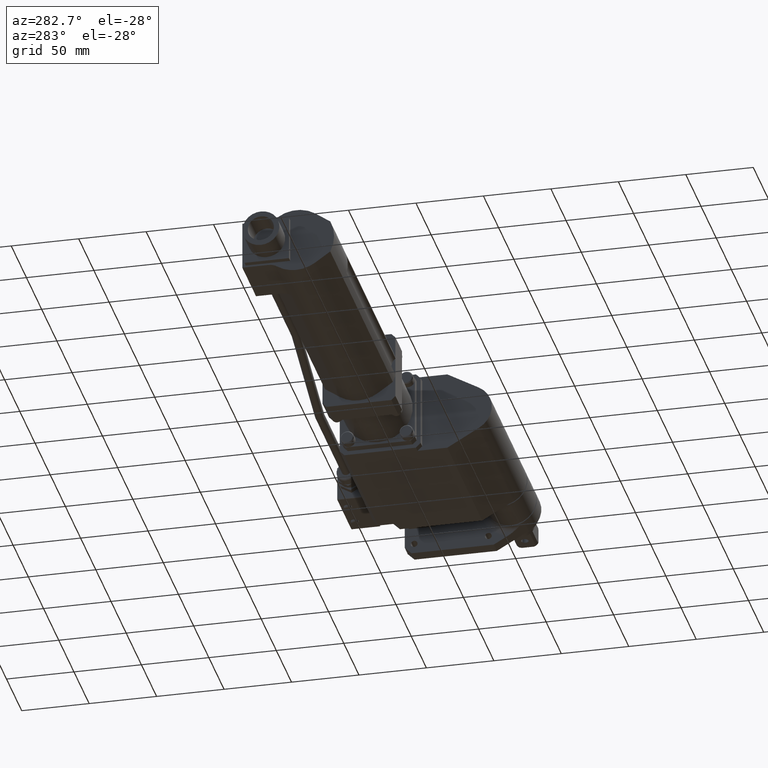
[diagram: clean part render]
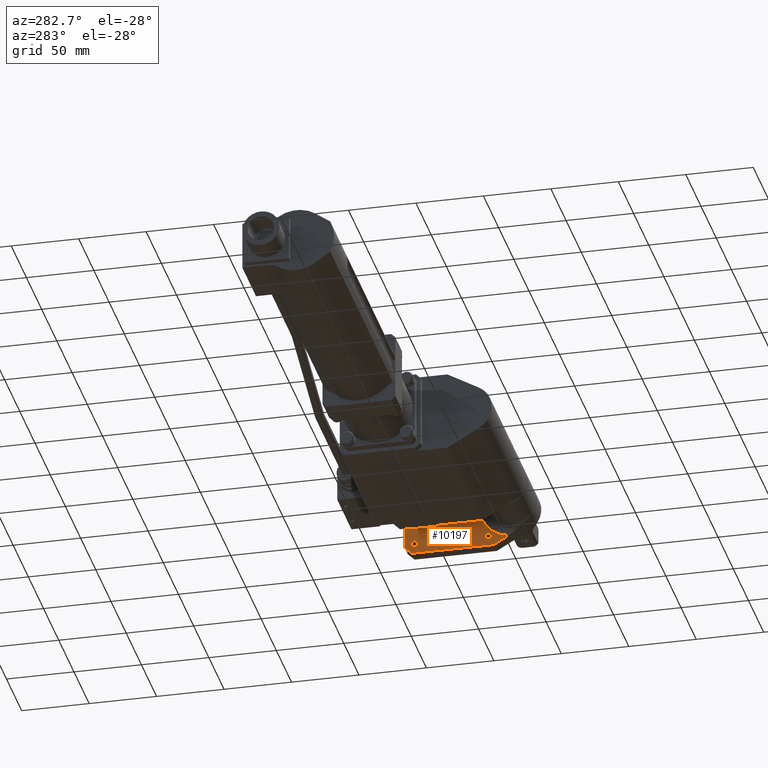
[diagram: same view with one face highlighted and labeled with its STEP entity id]
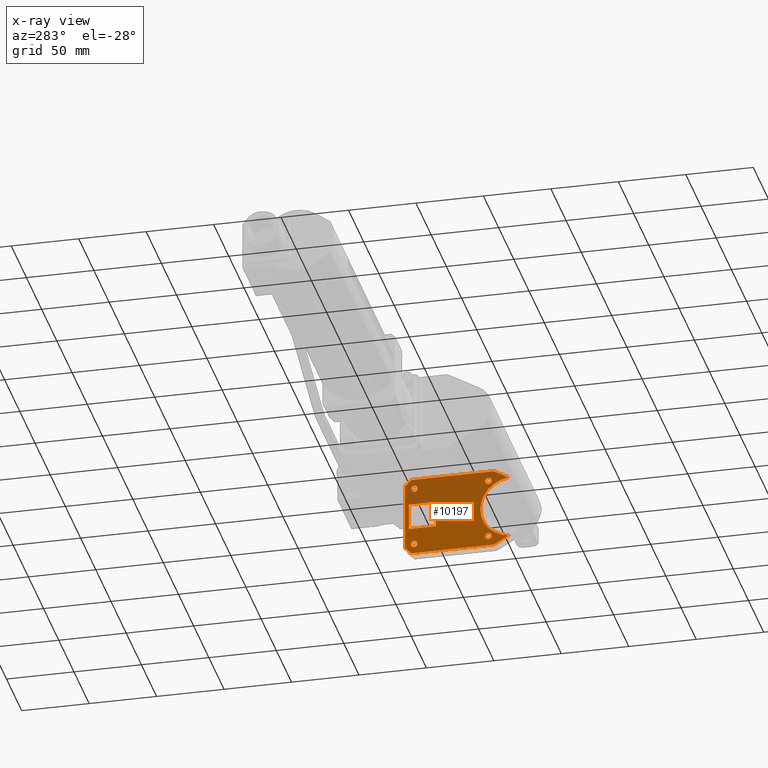
[diagram: x-ray of the same camera — body ghosted, the highlighted face saturated]
A machine part, auxiliary view. The second image highlights one B-rep face of the part: STEP entity #10197.
The next image is the same camera in x-ray: the body ghosted, the highlighted face saturated — about 57% of this face is hidden behind the body in this view.
In plain terms, the highlighted planar face has unit normal (-1, 0, 0).
Its self-contained STEP definition (entity closure, byte-faithful):
#27 = CARTESIAN_POINT ( 'NONE',  ( -10.00000000000000000, 18.00000000000000000, 22.50000000000000400 ) ) ;
#46 = VERTEX_POINT ( 'NONE', #8899 ) ;
#56 = CARTESIAN_POINT ( 'NONE',  ( -10.00000000000000000, 73.00000000000000000, -22.49999999999999600 ) ) ;
#89 = CARTESIAN_POINT ( 'NONE',  ( -10.00000000000000000, 18.00000000000000000, 25.00000000000000000 ) ) ;
#139 = ORIENTED_EDGE ( 'NONE', *, *, #10903, .T. ) ;
#174 = CARTESIAN_POINT ( 'NONE',  ( -10.00000000000000000, 57.00000000000000000, -10.00000000000000000 ) ) ;
#222 = CARTESIAN_POINT ( 'NONE',  ( -10.00000000000000000, 52.50000000000010700, -52.49999999999995700 ) ) ;
#401 = VERTEX_POINT ( 'NONE', #12188 ) ;
#528 = DIRECTION ( 'NONE',  ( 0.0000000000000000000, 0.0000000000000000000, -1.000000000000000000 ) ) ;
#542 = LINE ( 'NONE', #12589, #7253 ) ;
#556 = CARTESIAN_POINT ( 'NONE',  ( -10.00000000000000000, 18.00000000000000000, 20.00000000000000400 ) ) ;
#560 = ORIENTED_EDGE ( 'NONE', *, *, #10388, .T. ) ;
#573 = FACE_BOUND ( 'NONE', #9596, .T. ) ;
#778 = CARTESIAN_POINT ( 'NONE',  ( -10.00000000000000000, 77.00000000000000000, 10.00000000000000000 ) ) ;
#794 = CARTESIAN_POINT ( 'NONE',  ( -10.00000000000000000, 77.00000000000000000, -10.00000000000000000 ) ) ;
#843 = DIRECTION ( 'NONE',  ( -0.0000000000000000000, -0.0000000000000000000, -1.000000000000000000 ) ) ;
#852 = EDGE_CURVE ( 'NONE', #2678, #8728, #12736, .T. ) ;
#868 = VECTOR ( 'NONE', #10006, 1000.000000000000100 ) ;
#1046 = CIRCLE ( 'NONE', #3212, 2.500000000000002200 ) ;
#1218 = CARTESIAN_POINT ( 'NONE',  ( -10.00000000000000000, 13.96152422706587600, 29.99999999999999600 ) ) ;
#1244 = FACE_OUTER_BOUND ( 'NONE', #4252, .T. ) ;
#1254 = LINE ( 'NONE', #13313, #10713 ) ;
#1303 = VERTEX_POINT ( 'NONE', #9339 ) ;
#1388 = DIRECTION ( 'NONE',  ( -0.0000000000000000000, -0.8660254037844414800, 0.4999999999999950600 ) ) ;
#1559 = LINE ( 'NONE', #174, #6039 ) ;
#1611 = LINE ( 'NONE', #222, #10871 ) ;
#1652 = ORIENTED_EDGE ( 'NONE', *, *, #5324, .F. ) ;
#1687 = DIRECTION ( 'NONE',  ( 0.0000000000000000000, -8.881784197001252300E-016, 1.000000000000000000 ) ) ;
#1703 = CIRCLE ( 'NONE', #7758, 2.499999999999998700 ) ;
#1900 = DIRECTION ( 'NONE',  ( 1.000000000000000000, -0.0000000000000000000, -0.0000000000000000000 ) ) ;
#2096 = ORIENTED_EDGE ( 'NONE', *, *, #7385, .T. ) ;
#2212 = CARTESIAN_POINT ( 'NONE',  ( -10.00000000000000000, 77.00000000000000000, 10.00000000000000000 ) ) ;
#2374 = DIRECTION ( 'NONE',  ( -0.0000000000000000000, -0.0000000000000000000, -1.000000000000000000 ) ) ;
#2567 = DIRECTION ( 'NONE',  ( 0.0000000000000000000, 0.0000000000000000000, -1.000000000000000000 ) ) ;
#2646 = CARTESIAN_POINT ( 'NONE',  ( -10.00000000000000000, 73.00000000000000000, 25.00000000000001100 ) ) ;
#2660 = AXIS2_PLACEMENT_3D ( 'NONE', #5288, #3928, #2567 ) ;
#2678 = VERTEX_POINT ( 'NONE', #8005 ) ;
#2733 = CIRCLE ( 'NONE', #8334, 2.499999999999998700 ) ;
#2779 = CARTESIAN_POINT ( 'NONE',  ( -10.00000000000000000, 13.96152422706663100, -30.00000000000000400 ) ) ;
#2803 = CIRCLE ( 'NONE', #6865, 2.499999999999998700 ) ;
#2902 = VECTOR ( 'NONE', #3027, 1000.000000000000000 ) ;
#2926 = ORIENTED_EDGE ( 'NONE', *, *, #4624, .T. ) ;
#3027 = DIRECTION ( 'NONE',  ( -0.0000000000000000000, -0.0000000000000000000, -1.000000000000000000 ) ) ;
#3063 = DIRECTION ( 'NONE',  ( 1.000000000000000000, -0.0000000000000000000, -0.0000000000000000000 ) ) ;
#3154 = VERTEX_POINT ( 'NONE', #3678 ) ;
#3212 = AXIS2_PLACEMENT_3D ( 'NONE', #6663, #5261, #3900 ) ;
#3271 = CARTESIAN_POINT ( 'NONE',  ( -10.00000000000000000, 18.00000000000000000, -22.49999999999999600 ) ) ;
#3369 = AXIS2_PLACEMENT_3D ( 'NONE', #56, #12127, #10742 ) ;
#3425 = EDGE_CURVE ( 'NONE', #9015, #9707, #5767, .T. ) ;
#3597 = EDGE_CURVE ( 'NONE', #5938, #8110, #1703, .T. ) ;
#3604 = LINE ( 'NONE', #2212, #3951 ) ;
#3615 = ORIENTED_EDGE ( 'NONE', *, *, #5546, .T. ) ;
#3678 = CARTESIAN_POINT ( 'NONE',  ( -10.00000000000000000, 80.00000000000001400, 24.99999999999994300 ) ) ;
#3718 = CARTESIAN_POINT ( 'NONE',  ( -10.00000000000000000, 80.00000000000000000, -24.99999999999998600 ) ) ;
#3756 = CARTESIAN_POINT ( 'NONE',  ( -10.00000000000000000, 80.00000000000000000, -30.00000000000000000 ) ) ;
#3897 = EDGE_LOOP ( 'NONE', ( #4940, #4131 ) ) ;
#3900 = DIRECTION ( 'NONE',  ( 0.0000000000000000000, 0.0000000000000000000, -1.000000000000000000 ) ) ;
#3928 = DIRECTION ( 'NONE',  ( 1.000000000000000000, -0.0000000000000000000, -0.0000000000000000000 ) ) ;
#3951 = VECTOR ( 'NONE', #843, 1000.000000000000000 ) ;
#4047 = CIRCLE ( 'NONE', #7272, 24.00000000000000400 ) ;
#4129 = LINE ( 'NONE', #2779, #6769 ) ;
#4131 = ORIENTED_EDGE ( 'NONE', *, *, #7143, .T. ) ;
#4148 = ORIENTED_EDGE ( 'NONE', *, *, #852, .T. ) ;
#4252 = EDGE_LOOP ( 'NONE', ( #2096, #11163, #4148, #5224, #2926, #9750, #8999, #10235 ) ) ;
#4378 = CARTESIAN_POINT ( 'NONE',  ( -10.00000000000000000, 57.00000000000000000, 10.00000000000000000 ) ) ;
#4417 = CARTESIAN_POINT ( 'NONE',  ( -10.00000000000000000, 0.0000000000000000000, 0.0000000000000000000 ) ) ;
#4538 = EDGE_LOOP ( 'NONE', ( #560, #10751 ) ) ;
#4624 = EDGE_CURVE ( 'NONE', #11410, #3154, #12756, .T. ) ;
#4762 = EDGE_CURVE ( 'NONE', #10147, #4857, #13182, .T. ) ;
#4857 = VERTEX_POINT ( 'NONE', #2646 ) ;
#4940 = ORIENTED_EDGE ( 'NONE', *, *, #4762, .T. ) ;
#4971 = CIRCLE ( 'NONE', #10534, 2.499999999999998700 ) ;
#5047 = CARTESIAN_POINT ( 'NONE',  ( -10.00000000000000000, 73.00000000000000000, 20.00000000000000700 ) ) ;
#5121 = LINE ( 'NONE', #3756, #6935 ) ;
#5224 = ORIENTED_EDGE ( 'NONE', *, *, #11914, .T. ) ;
#5245 = EDGE_CURVE ( 'NONE', #10413, #401, #542, .T. ) ;
#5261 = DIRECTION ( 'NONE',  ( 1.000000000000000000, -0.0000000000000000000, -0.0000000000000000000 ) ) ;
#5288 = CARTESIAN_POINT ( 'NONE',  ( -10.00000000000000000, 73.00000000000000000, 22.50000000000001100 ) ) ;
#5313 = VECTOR ( 'NONE', #10021, 1000.000000000000000 ) ;
#5324 = EDGE_CURVE ( 'NONE', #9015, #11868, #1254, .T. ) ;
#5360 = VERTEX_POINT ( 'NONE', #6853 ) ;
#5443 = EDGE_CURVE ( 'NONE', #11868, #6278, #3604, .T. ) ;
#5546 = EDGE_CURVE ( 'NONE', #13406, #5360, #4971, .T. ) ;
#5602 = CIRCLE ( 'NONE', #9675, 2.500000000000002200 ) ;
#5767 = LINE ( 'NONE', #4378, #2902 ) ;
#5857 = CARTESIAN_POINT ( 'NONE',  ( -10.00000000000000000, 18.00000000000000000, -24.99999999999999300 ) ) ;
#5938 = VERTEX_POINT ( 'NONE', #89 ) ;
#6039 = VECTOR ( 'NONE', #12243, 1000.000000000000000 ) ;
#6086 = VERTEX_POINT ( 'NONE', #6152 ) ;
#6152 = CARTESIAN_POINT ( 'NONE',  ( -10.00000000000000000, 3.198425099200437500, -23.78592182121191100 ) ) ;
#6278 = VERTEX_POINT ( 'NONE', #794 ) ;
#6343 = DIRECTION ( 'NONE',  ( -0.0000000000000000000, 1.000000000000000000, -5.253675090689430300E-017 ) ) ;
#6399 = EDGE_CURVE ( 'NONE', #6086, #2678, #4047, .T. ) ;
#6426 = CARTESIAN_POINT ( 'NONE',  ( -10.00000000000000000, 75.00000000000000000, -30.00000000000000000 ) ) ;
#6663 = CARTESIAN_POINT ( 'NONE',  ( -10.00000000000000000, 73.00000000000000000, 22.50000000000001100 ) ) ;
#6769 = VECTOR ( 'NONE', #1388, 1000.000000000000100 ) ;
#6853 = CARTESIAN_POINT ( 'NONE',  ( -10.00000000000000000, 18.00000000000000000, -19.99999999999999600 ) ) ;
#6865 = AXIS2_PLACEMENT_3D ( 'NONE', #3271, #1900, #528 ) ;
#6935 = VECTOR ( 'NONE', #2374, 1000.000000000000000 ) ;
#6937 = EDGE_CURVE ( 'NONE', #3154, #12191, #5121, .T. ) ;
#6943 = ORIENTED_EDGE ( 'NONE', *, *, #12852, .T. ) ;
#7143 = EDGE_CURVE ( 'NONE', #4857, #10147, #1046, .T. ) ;
#7253 = VECTOR ( 'NONE', #11220, 1000.000000000000000 ) ;
#7272 = AXIS2_PLACEMENT_3D ( 'NONE', #4417, #3063, #1687 ) ;
#7385 = EDGE_CURVE ( 'NONE', #401, #6086, #4129, .T. ) ;
#7400 = ORIENTED_EDGE ( 'NONE', *, *, #3425, .T. ) ;
#7519 = ORIENTED_EDGE ( 'NONE', *, *, #5443, .F. ) ;
#7562 = DIRECTION ( 'NONE',  ( 0.0000000000000000000, 0.0000000000000000000, -1.000000000000000000 ) ) ;
#7753 = CARTESIAN_POINT ( 'NONE',  ( -10.00000000000000000, 80.00000000000000000, 29.99999999999999300 ) ) ;
#7758 = AXIS2_PLACEMENT_3D ( 'NONE', #27, #12090, #10700 ) ;
#8005 = CARTESIAN_POINT ( 'NONE',  ( -10.00000000000000000, 3.198425099200107500, 23.78592182121195400 ) ) ;
#8070 = VECTOR ( 'NONE', #6343, 1000.000000000000000 ) ;
#8110 = VERTEX_POINT ( 'NONE', #556 ) ;
#8334 = AXIS2_PLACEMENT_3D ( 'NONE', #11234, #9864, #8486 ) ;
#8486 = DIRECTION ( 'NONE',  ( 0.0000000000000000000, 0.0000000000000000000, -1.000000000000000000 ) ) ;
#8728 = VERTEX_POINT ( 'NONE', #1218 ) ;
#8899 = CARTESIAN_POINT ( 'NONE',  ( -10.00000000000000000, 73.00000000000000000, -24.99999999999999600 ) ) ;
#8956 = DIRECTION ( 'NONE',  ( 1.000000000000000000, -0.0000000000000000000, -0.0000000000000000000 ) ) ;
#8961 = DIRECTION ( 'NONE',  ( 0.0000000000000000000, 0.0000000000000000000, 1.000000000000000000 ) ) ;
#8999 = ORIENTED_EDGE ( 'NONE', *, *, #9496, .T. ) ;
#9015 = VERTEX_POINT ( 'NONE', #12153 ) ;
#9124 = LINE ( 'NONE', #7753, #8070 ) ;
#9339 = CARTESIAN_POINT ( 'NONE',  ( -10.00000000000000000, 73.00000000000000000, -19.99999999999999300 ) ) ;
#9486 = FACE_BOUND ( 'NONE', #4538, .T. ) ;
#9496 = EDGE_CURVE ( 'NONE', #12191, #10413, #1611, .T. ) ;
#9596 = EDGE_LOOP ( 'NONE', ( #1652, #7400, #139, #7519 ) ) ;
#9675 = AXIS2_PLACEMENT_3D ( 'NONE', #13307, #11950, #10548 ) ;
#9707 = VERTEX_POINT ( 'NONE', #11880 ) ;
#9750 = ORIENTED_EDGE ( 'NONE', *, *, #6937, .T. ) ;
#9864 = DIRECTION ( 'NONE',  ( 1.000000000000000000, -0.0000000000000000000, -0.0000000000000000000 ) ) ;
#9883 = ORIENTED_EDGE ( 'NONE', *, *, #12455, .T. ) ;
#9957 = CARTESIAN_POINT ( 'NONE',  ( -10.00000000000000000, 74.99999999999997200, 29.99999999999998600 ) ) ;
#10006 = DIRECTION ( 'NONE',  ( -0.0000000000000000000, 0.8660254037844346000, 0.5000000000000067700 ) ) ;
#10021 = DIRECTION ( 'NONE',  ( -0.0000000000000000000, 0.7071067811865485700, -0.7071067811865465700 ) ) ;
#10147 = VERTEX_POINT ( 'NONE', #5047 ) ;
#10197 = ADVANCED_FACE ( 'NONE', ( #11225, #11929, #9486, #13292, #573, #1244 ), #13064, .T. ) ;
#10235 = ORIENTED_EDGE ( 'NONE', *, *, #5245, .T. ) ;
#10313 = CARTESIAN_POINT ( 'NONE',  ( -10.00000000000000000, 18.00000000000000000, -22.49999999999999600 ) ) ;
#10318 = DIRECTION ( 'NONE',  ( -1.000000000000000000, 0.0000000000000000000, 0.0000000000000000000 ) ) ;
#10388 = EDGE_CURVE ( 'NONE', #46, #1303, #5602, .T. ) ;
#10413 = VERTEX_POINT ( 'NONE', #6426 ) ;
#10534 = AXIS2_PLACEMENT_3D ( 'NONE', #10313, #8956, #7562 ) ;
#10548 = DIRECTION ( 'NONE',  ( 0.0000000000000000000, 0.0000000000000000000, -1.000000000000000000 ) ) ;
#10590 = EDGE_LOOP ( 'NONE', ( #9883, #13035 ) ) ;
#10700 = DIRECTION ( 'NONE',  ( 0.0000000000000000000, 0.0000000000000000000, -1.000000000000000000 ) ) ;
#10713 = VECTOR ( 'NONE', #11957, 1000.000000000000000 ) ;
#10742 = DIRECTION ( 'NONE',  ( 0.0000000000000000000, 0.0000000000000000000, -1.000000000000000000 ) ) ;
#10751 = ORIENTED_EDGE ( 'NONE', *, *, #11546, .T. ) ;
#10871 = VECTOR ( 'NONE', #12289, 1000.000000000000000 ) ;
#10903 = EDGE_CURVE ( 'NONE', #9707, #6278, #1559, .T. ) ;
#11163 = ORIENTED_EDGE ( 'NONE', *, *, #6399, .T. ) ;
#11220 = DIRECTION ( 'NONE',  ( -0.0000000000000000000, -1.000000000000000000, -5.253675090689490100E-017 ) ) ;
#11225 = FACE_BOUND ( 'NONE', #10590, .T. ) ;
#11234 = CARTESIAN_POINT ( 'NONE',  ( -10.00000000000000000, 18.00000000000000000, 22.50000000000000400 ) ) ;
#11370 = CARTESIAN_POINT ( 'NONE',  ( -10.00000000000000000, 13.96152422706587600, 29.99999999999999600 ) ) ;
#11391 = CARTESIAN_POINT ( 'NONE',  ( -10.00000000000000000, 52.49999999999987200, 52.50000000000002100 ) ) ;
#11410 = VERTEX_POINT ( 'NONE', #9957 ) ;
#11546 = EDGE_CURVE ( 'NONE', #1303, #46, #12957, .T. ) ;
#11566 = EDGE_LOOP ( 'NONE', ( #3615, #6943 ) ) ;
#11694 = CARTESIAN_POINT ( 'NONE',  ( -10.00000000000000000, 0.0000000000000000000, 0.0000000000000000000 ) ) ;
#11868 = VERTEX_POINT ( 'NONE', #778 ) ;
#11880 = CARTESIAN_POINT ( 'NONE',  ( -10.00000000000000000, 57.00000000000000000, -10.00000000000000000 ) ) ;
#11914 = EDGE_CURVE ( 'NONE', #8728, #11410, #9124, .T. ) ;
#11929 = FACE_BOUND ( 'NONE', #11566, .T. ) ;
#11950 = DIRECTION ( 'NONE',  ( 1.000000000000000000, -0.0000000000000000000, -0.0000000000000000000 ) ) ;
#11957 = DIRECTION ( 'NONE',  ( 0.0000000000000000000, 1.000000000000000000, 0.0000000000000000000 ) ) ;
#12090 = DIRECTION ( 'NONE',  ( 1.000000000000000000, -0.0000000000000000000, -0.0000000000000000000 ) ) ;
#12127 = DIRECTION ( 'NONE',  ( 1.000000000000000000, -0.0000000000000000000, -0.0000000000000000000 ) ) ;
#12153 = CARTESIAN_POINT ( 'NONE',  ( -10.00000000000000000, 57.00000000000000000, 10.00000000000000000 ) ) ;
#12188 = CARTESIAN_POINT ( 'NONE',  ( -10.00000000000000000, 13.96152422706663100, -30.00000000000000400 ) ) ;
#12191 = VERTEX_POINT ( 'NONE', #3718 ) ;
#12243 = DIRECTION ( 'NONE',  ( 0.0000000000000000000, 1.000000000000000000, 0.0000000000000000000 ) ) ;
#12289 = DIRECTION ( 'NONE',  ( -0.0000000000000000000, -0.7071067811865465700, -0.7071067811865485700 ) ) ;
#12455 = EDGE_CURVE ( 'NONE', #8110, #5938, #2733, .T. ) ;
#12589 = CARTESIAN_POINT ( 'NONE',  ( -10.00000000000000000, 13.96152422706663100, -30.00000000000000400 ) ) ;
#12736 = LINE ( 'NONE', #11370, #868 ) ;
#12756 = LINE ( 'NONE', #11391, #5313 ) ;
#12852 = EDGE_CURVE ( 'NONE', #5360, #13406, #2803, .T. ) ;
#12949 = AXIS2_PLACEMENT_3D ( 'NONE', #11694, #10318, #8961 ) ;
#12957 = CIRCLE ( 'NONE', #3369, 2.500000000000002200 ) ;
#13035 = ORIENTED_EDGE ( 'NONE', *, *, #3597, .T. ) ;
#13064 = PLANE ( 'NONE',  #12949 ) ;
#13182 = CIRCLE ( 'NONE', #2660, 2.500000000000002200 ) ;
#13292 = FACE_BOUND ( 'NONE', #3897, .T. ) ;
#13307 = CARTESIAN_POINT ( 'NONE',  ( -10.00000000000000000, 73.00000000000000000, -22.49999999999999600 ) ) ;
#13313 = CARTESIAN_POINT ( 'NONE',  ( -10.00000000000000000, 57.00000000000000000, 10.00000000000000000 ) ) ;
#13406 = VERTEX_POINT ( 'NONE', #5857 ) ;